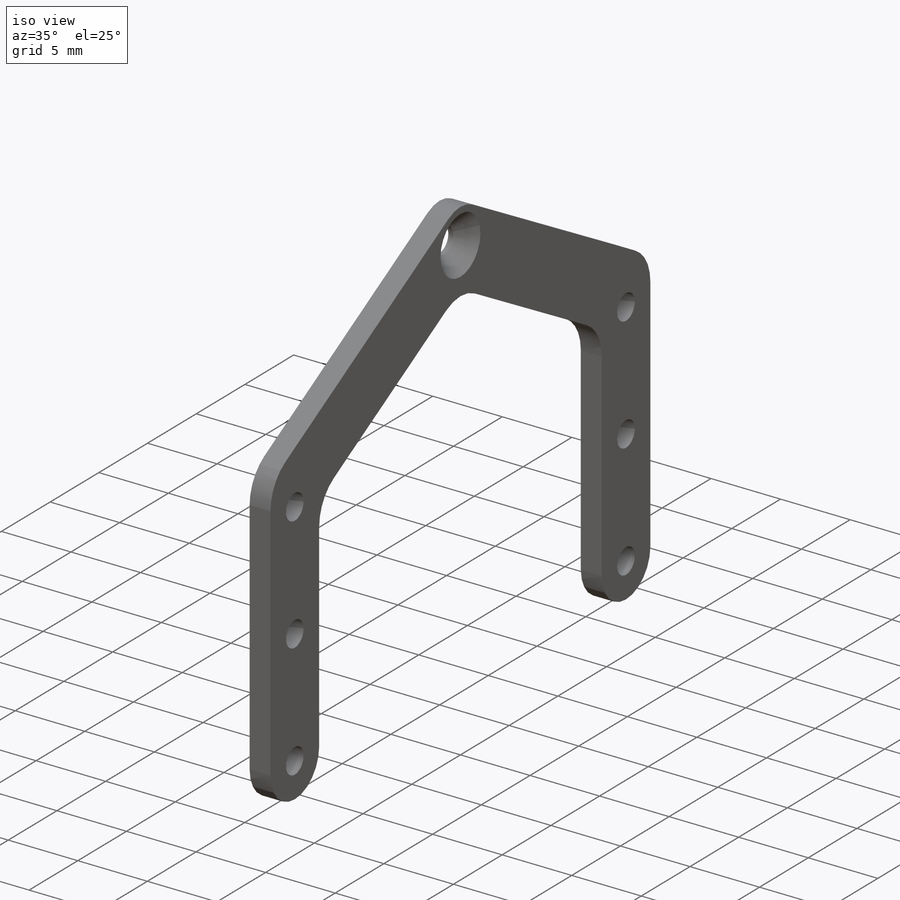
[diagram: iso view]
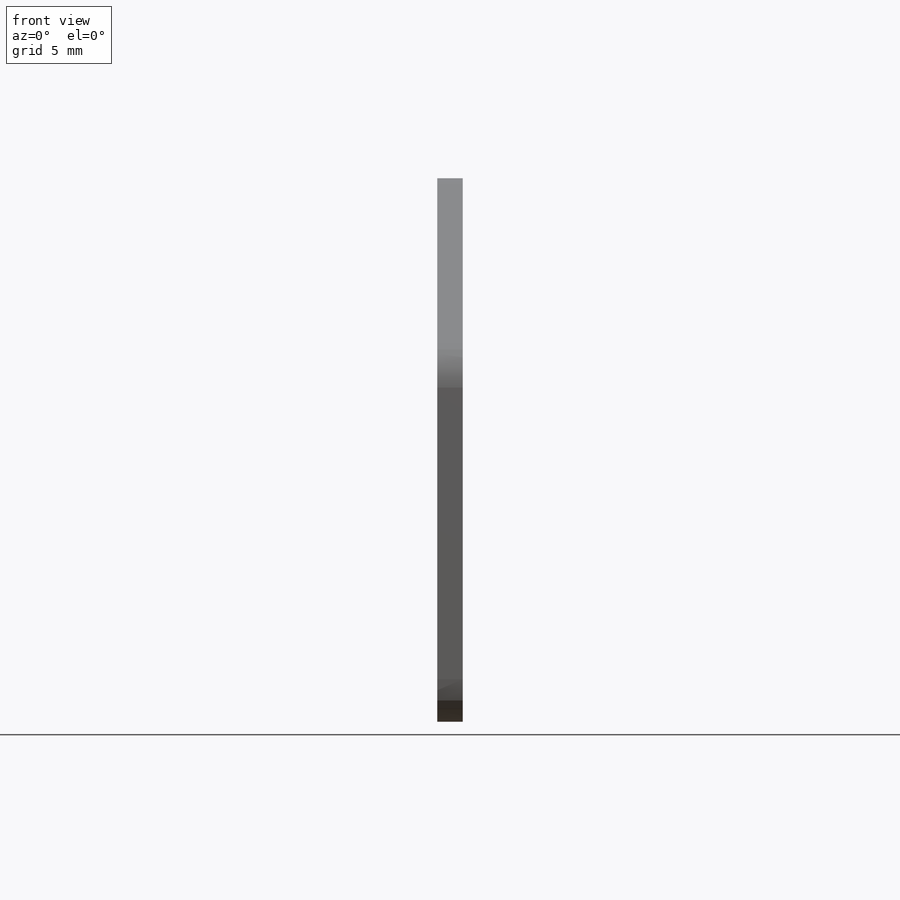
[diagram: front view]
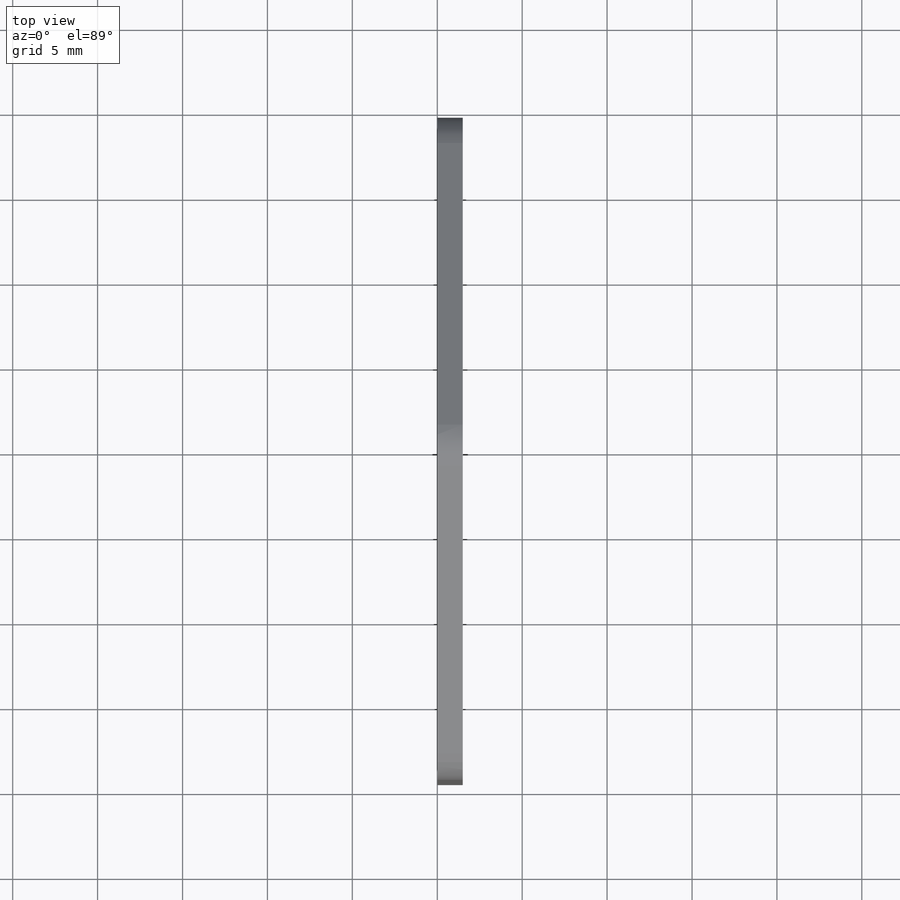
[diagram: top view]
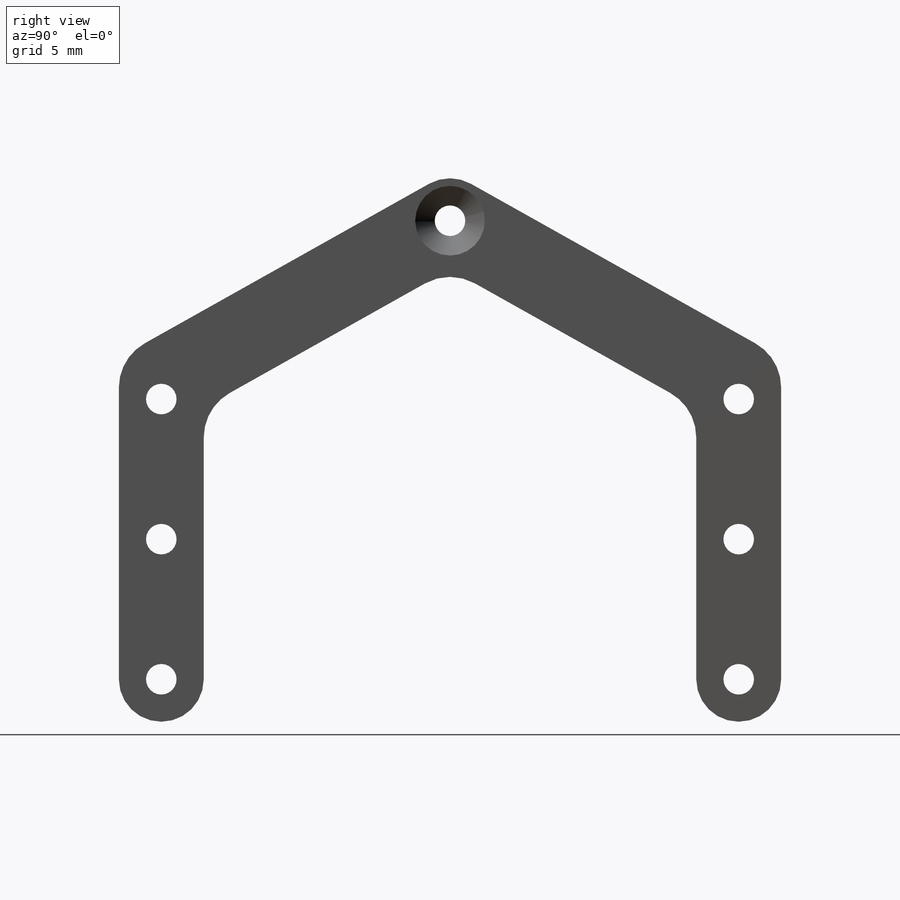
[diagram: right view]
SOLIDWORKS PART (.sldprt)
format: sldprt  version: not decoded by parser v0  size: 260,096 bytes
history: native  units: mm
features: sketch x4, plane x3, material x1, extrude x1, fillet x1, cut_extrude x1, hole x1 (+10 scaffold rows collapsed)
feature tree (22):
  scaffold x10  (default folders/planes/origin — collapsed)
  material  "材质 <未指定>"
  plane  "前视基准面"
  plane  "上视基准面"
  plane  "右视基准面"
  sketch  "草图1"  dims[D1=1.8mm D4=5.0mm D2=34.0mm D3=27.0mm D5=16.0mm D6=17.0mm]
  extrude  "凸台-拉伸1"  Depth=1.5mm
  fillet  "圆角1"  Radius=3mm
  sketch  "草图2"  dims[D1=1.8mm D2=16.5mm D3=8.25mm]
  cut_extrude  "切除-拉伸1"  Depth=10mm
  hole  "M2 平头机械螺钉的锥形沉头孔1"  [1 undecoded]
  sketch  "3D草图1"
  sketch  "草图3"  dims[hole-wizard template sketch: 54 standard entries collapsed; hole parameters kept: c17.通孔孔直径=1.7mm c17.通孔孔深度=1.5mm c17.近端锥形沉头孔直径=4.1mm c17.D4=~3.666174mm c17.近端锥形沉头孔角度=90.0deg]
decode coverage: 6 of 8 modeling features carry decoded parameters
note: ~ marks probable driven/reference dimensions
note: 1 parameter value undecoded
note: suppression state not decoded; provenance and decode notes live in map.json
